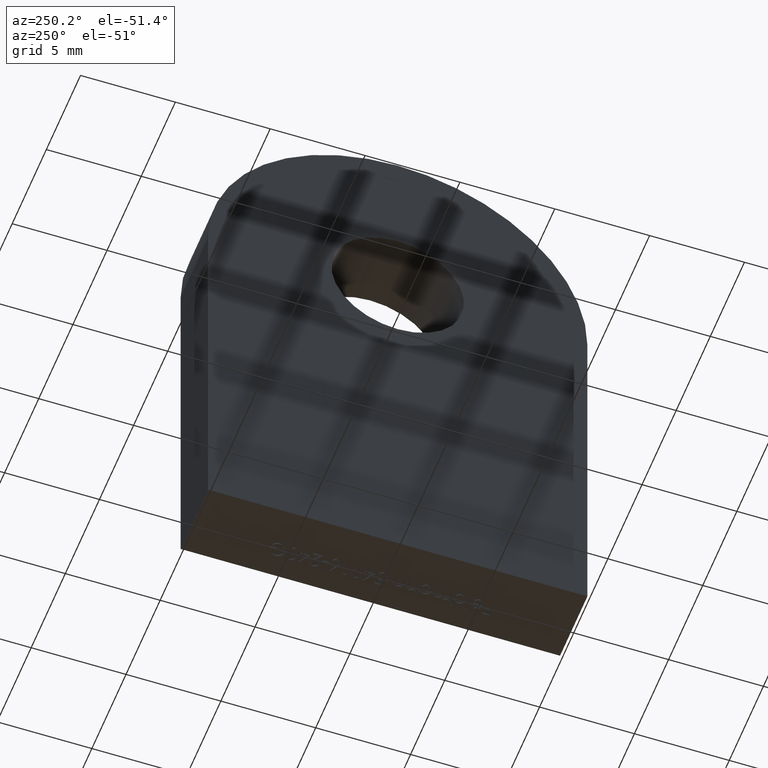
[diagram: clean part render]
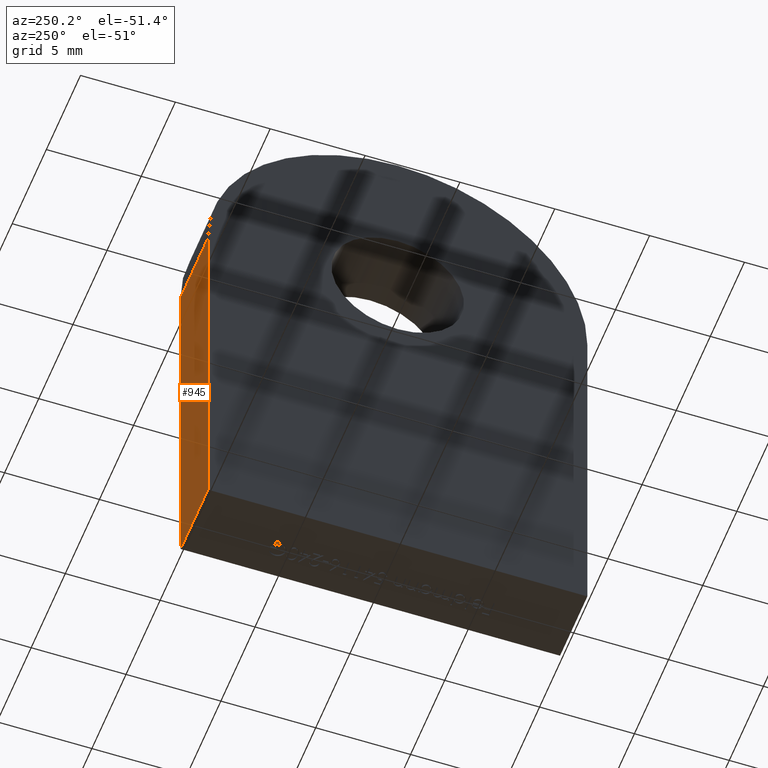
[diagram: same view with one face highlighted and labeled with its STEP entity id]
A machine part, auxiliary view. The second image highlights one B-rep face of the part: STEP entity #945.
In plain terms, the highlighted planar face has unit normal (-0, 1, 0).
Its self-contained STEP definition (entity closure, byte-faithful):
#63 = VERTEX_POINT ( 'NONE', #5822 ) ;
#109 = VERTEX_POINT ( 'NONE', #1011 ) ;
#835 = ORIENTED_EDGE ( 'NONE', *, *, #2578, .F. ) ;
#945 = ADVANCED_FACE ( 'NONE', ( #11809 ), #11616, .T. ) ;
#1011 = CARTESIAN_POINT ( 'NONE',  ( 2.000000000000000000, 10.00000000000000000, -3.061616997868383000E-015 ) ) ;
#1088 = VECTOR ( 'NONE', #9535, 1000.000000000000000 ) ;
#2154 = CARTESIAN_POINT ( 'NONE',  ( 2.000000000000000000, 10.00000000000000000, 19.99999999999999600 ) ) ;
#2226 = LINE ( 'NONE', #3343, #5905 ) ;
#2426 = VECTOR ( 'NONE', #3036, 1000.000000000000000 ) ;
#2563 = LINE ( 'NONE', #5951, #2426 ) ;
#2578 = EDGE_CURVE ( 'NONE', #7062, #63, #3600, .T. ) ;
#2823 = CARTESIAN_POINT ( 'NONE',  ( 2.000000000000000000, 10.00000000000000000, 19.99999999999999600 ) ) ;
#3036 = DIRECTION ( 'NONE',  ( -1.000000000000000000, -0.0000000000000000000, -0.0000000000000000000 ) ) ;
#3242 = CARTESIAN_POINT ( 'NONE',  ( -2.000000000000000000, 10.00000000000000000, -3.061616997868383000E-015 ) ) ;
#3343 = CARTESIAN_POINT ( 'NONE',  ( -2.000000000000000000, 10.00000000000000000, 19.99999999999999600 ) ) ;
#3600 = LINE ( 'NONE', #9242, #1088 ) ;
#3790 = DIRECTION ( 'NONE',  ( 0.0000000000000000000, 0.0000000000000000000, -1.000000000000000000 ) ) ;
#4271 = EDGE_LOOP ( 'NONE', ( #5820, #835, #8122, #9290 ) ) ;
#4802 = DIRECTION ( 'NONE',  ( -0.0000000000000000000, 1.000000000000000000, 0.0000000000000000000 ) ) ;
#5004 = CARTESIAN_POINT ( 'NONE',  ( 2.000000000000000000, 10.00000000000000000, 19.99999999999999600 ) ) ;
#5820 = ORIENTED_EDGE ( 'NONE', *, *, #10012, .F. ) ;
#5822 = CARTESIAN_POINT ( 'NONE',  ( -2.000000000000000000, 10.00000000000000000, 19.99999999999999600 ) ) ;
#5905 = VECTOR ( 'NONE', #8201, 1000.000000000000000 ) ;
#5951 = CARTESIAN_POINT ( 'NONE',  ( 2.000000000000000000, 10.00000000000000000, -3.061616997868383000E-015 ) ) ;
#6366 = LINE ( 'NONE', #2823, #7115 ) ;
#7062 = VERTEX_POINT ( 'NONE', #5004 ) ;
#7115 = VECTOR ( 'NONE', #3790, 1000.000000000000000 ) ;
#7511 = EDGE_CURVE ( 'NONE', #7062, #109, #6366, .T. ) ;
#8122 = ORIENTED_EDGE ( 'NONE', *, *, #7511, .T. ) ;
#8201 = DIRECTION ( 'NONE',  ( 0.0000000000000000000, 0.0000000000000000000, -1.000000000000000000 ) ) ;
#9217 = VERTEX_POINT ( 'NONE', #3242 ) ;
#9242 = CARTESIAN_POINT ( 'NONE',  ( 2.000000000000000000, 10.00000000000000000, 19.99999999999999600 ) ) ;
#9290 = ORIENTED_EDGE ( 'NONE', *, *, #10400, .T. ) ;
#9478 = AXIS2_PLACEMENT_3D ( 'NONE', #2154, #4802, #11457 ) ;
#9535 = DIRECTION ( 'NONE',  ( -1.000000000000000000, -0.0000000000000000000, -0.0000000000000000000 ) ) ;
#10012 = EDGE_CURVE ( 'NONE', #63, #9217, #2226, .T. ) ;
#10400 = EDGE_CURVE ( 'NONE', #109, #9217, #2563, .T. ) ;
#11457 = DIRECTION ( 'NONE',  ( 0.0000000000000000000, -0.0000000000000000000, 1.000000000000000000 ) ) ;
#11616 = PLANE ( 'NONE',  #9478 ) ;
#11809 = FACE_OUTER_BOUND ( 'NONE', #4271, .T. ) ;